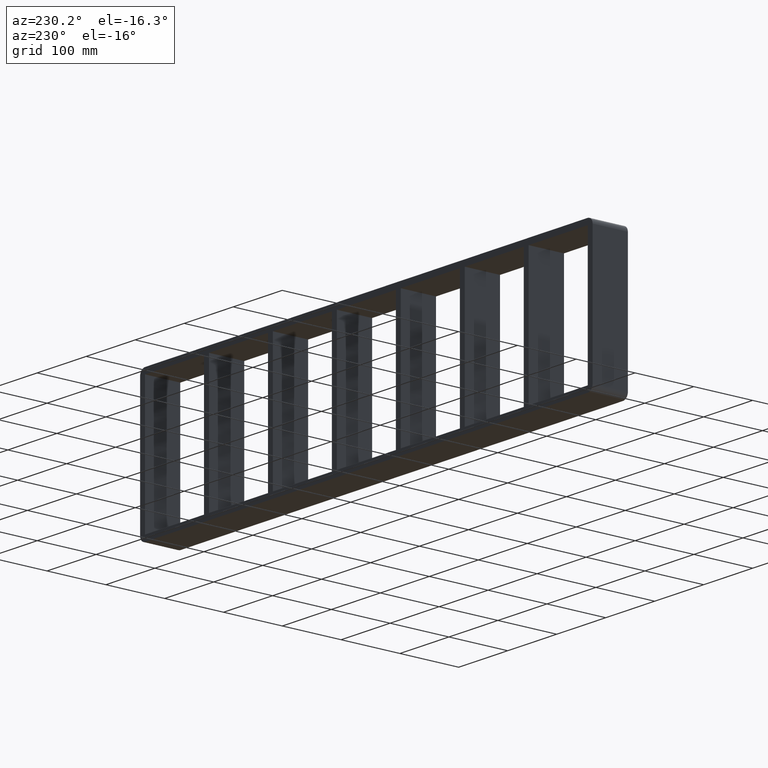
[diagram: clean part render]
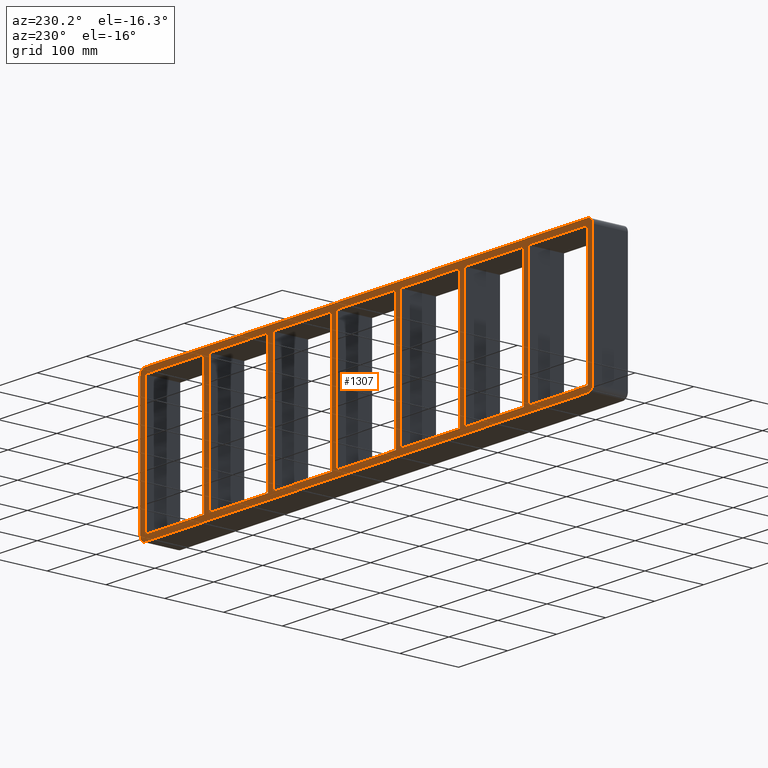
[diagram: same view with one face highlighted and labeled with its STEP entity id]
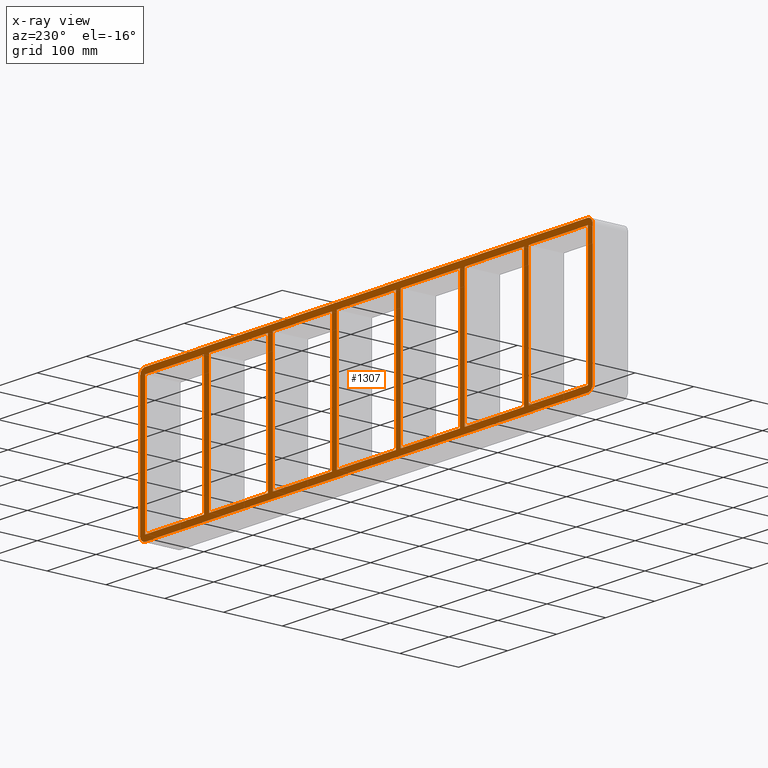
[diagram: x-ray of the same camera — body ghosted, the highlighted face saturated]
A machine part, auxiliary view. The second image highlights one B-rep face of the part: STEP entity #1307.
The next image is the same camera in x-ray: the body ghosted, the highlighted face saturated — about 0% of this face is hidden behind the body in this view.
In plain terms, the highlighted planar face has unit normal (0, 1, 0).
Its self-contained STEP definition (entity closure, byte-faithful):
#83=CARTESIAN_POINT('',(321.24999999999875,57.0,108.99999999999997));
#84=VERTEX_POINT('',#83);
#91=CARTESIAN_POINT('',(321.24999999999875,57.0,-109.0));
#92=VERTEX_POINT('',#91);
#93=CARTESIAN_POINT('',(321.24999999999875,57.0,-109.0));
#94=DIRECTION('',(0.0,0.0,1.0));
#95=VECTOR('',#94,217.99999999999997);
#96=LINE('',#93,#95);
#97=EDGE_CURVE('',#92,#84,#96,.T.);
#123=CARTESIAN_POINT('',(331.25,57.0,-108.9999999999842));
#124=VERTEX_POINT('',#123);
#131=CARTESIAN_POINT('',(331.25,57.0,108.99999999999997));
#132=VERTEX_POINT('',#131);
#133=CARTESIAN_POINT('',(331.25,57.0,108.99999999999997));
#134=DIRECTION('',(0.0,0.0,-1.0));
#135=VECTOR('',#134,217.99999999998417);
#136=LINE('',#133,#135);
#137=EDGE_CURVE('',#132,#124,#136,.T.);
#163=CARTESIAN_POINT('',(190.74999999999872,57.0,108.99999999999997));
#164=VERTEX_POINT('',#163);
#171=CARTESIAN_POINT('',(190.74999999999878,57.0,-109.0));
#172=VERTEX_POINT('',#171);
#173=CARTESIAN_POINT('',(190.74999999999878,57.0,-109.0));
#174=DIRECTION('',(0.0,0.0,1.0));
#175=VECTOR('',#174,217.99999999999997);
#176=LINE('',#173,#175);
#177=EDGE_CURVE('',#172,#164,#176,.T.);
#203=CARTESIAN_POINT('',(200.75000000000006,57.0,-108.9999999999842));
#204=VERTEX_POINT('',#203);
#211=CARTESIAN_POINT('',(200.75000000000006,57.0,108.99999999999997));
#212=VERTEX_POINT('',#211);
#213=CARTESIAN_POINT('',(200.75000000000006,57.0,108.99999999999997));
#214=DIRECTION('',(0.0,0.0,-1.0));
#215=VECTOR('',#214,217.99999999998417);
#216=LINE('',#213,#215);
#217=EDGE_CURVE('',#212,#204,#216,.T.);
#243=CARTESIAN_POINT('',(60.249999999998707,57.0,108.99999999999997));
#244=VERTEX_POINT('',#243);
#251=CARTESIAN_POINT('',(60.249999999998778,57.0,-109.0));
#252=VERTEX_POINT('',#251);
#253=CARTESIAN_POINT('',(60.249999999998778,57.0,-109.0));
#254=DIRECTION('',(0.0,0.0,1.0));
#255=VECTOR('',#254,217.99999999999997);
#256=LINE('',#253,#255);
#257=EDGE_CURVE('',#252,#244,#256,.T.);
#283=CARTESIAN_POINT('',(70.250000000000057,57.0,-108.9999999999842));
#284=VERTEX_POINT('',#283);
#291=CARTESIAN_POINT('',(70.250000000000057,57.0,108.99999999999997));
#292=VERTEX_POINT('',#291);
#293=CARTESIAN_POINT('',(70.250000000000057,57.0,108.99999999999997));
#294=DIRECTION('',(0.0,0.0,-1.0));
#295=VECTOR('',#294,217.99999999998417);
#296=LINE('',#293,#295);
#297=EDGE_CURVE('',#292,#284,#296,.T.);
#323=CARTESIAN_POINT('',(-70.250000000001336,57.0,108.99999999999997));
#324=VERTEX_POINT('',#323);
#331=CARTESIAN_POINT('',(-70.250000000001265,57.0,-109.0));
#332=VERTEX_POINT('',#331);
#333=CARTESIAN_POINT('',(-70.250000000001265,57.0,-109.0));
#334=DIRECTION('',(0.0,0.0,1.0));
#335=VECTOR('',#334,217.99999999999997);
#336=LINE('',#333,#335);
#337=EDGE_CURVE('',#332,#324,#336,.T.);
#363=CARTESIAN_POINT('',(-60.249999999999986,57.0,-108.9999999999842));
#364=VERTEX_POINT('',#363);
#371=CARTESIAN_POINT('',(-60.249999999999986,57.0,108.99999999999997));
#372=VERTEX_POINT('',#371);
#373=CARTESIAN_POINT('',(-60.249999999999986,57.0,108.99999999999997));
#374=DIRECTION('',(0.0,0.0,-1.0));
#375=VECTOR('',#374,217.99999999998417);
#376=LINE('',#373,#375);
#377=EDGE_CURVE('',#372,#364,#376,.T.);
#403=CARTESIAN_POINT('',(-200.75000000000134,57.0,108.99999999999997));
#404=VERTEX_POINT('',#403);
#411=CARTESIAN_POINT('',(-200.75000000000128,57.0,-109.0));
#412=VERTEX_POINT('',#411);
#413=CARTESIAN_POINT('',(-200.75000000000128,57.0,-109.0));
#414=DIRECTION('',(0.0,0.0,1.0));
#415=VECTOR('',#414,217.99999999999997);
#416=LINE('',#413,#415);
#417=EDGE_CURVE('',#412,#404,#416,.T.);
#443=CARTESIAN_POINT('',(-190.75,57.0,-108.9999999999842));
#444=VERTEX_POINT('',#443);
#451=CARTESIAN_POINT('',(-190.75,57.0,108.99999999999997));
#452=VERTEX_POINT('',#451);
#453=CARTESIAN_POINT('',(-190.75,57.0,108.99999999999997));
#454=DIRECTION('',(0.0,0.0,-1.0));
#455=VECTOR('',#454,217.99999999998417);
#456=LINE('',#453,#455);
#457=EDGE_CURVE('',#452,#444,#456,.T.);
#474=CARTESIAN_POINT('',(-321.25,57.0,-108.9999999999842));
#475=VERTEX_POINT('',#474);
#476=CARTESIAN_POINT('',(-321.25,57.0,-109.0));
#477=DIRECTION('',(1.0,0.0,0.0));
#478=VECTOR('',#477,120.49999999999872);
#479=LINE('',#476,#478);
#480=EDGE_CURVE('',#475,#412,#479,.T.);
#505=CARTESIAN_POINT('',(-190.74999999999997,57.0,-109.0));
#506=DIRECTION('',(1.0,0.0,0.0));
#507=VECTOR('',#506,120.49999999999869);
#508=LINE('',#505,#507);
#509=EDGE_CURVE('',#444,#332,#508,.T.);
#527=CARTESIAN_POINT('',(-60.249999999999972,57.0,-109.0));
#528=DIRECTION('',(1.0,0.0,0.0));
#529=VECTOR('',#528,120.49999999999875);
#530=LINE('',#527,#529);
#531=EDGE_CURVE('',#364,#252,#530,.T.);
#549=CARTESIAN_POINT('',(70.250000000000057,57.0,-109.0));
#550=DIRECTION('',(1.0,0.0,0.0));
#551=VECTOR('',#550,120.49999999999875);
#552=LINE('',#549,#551);
#553=EDGE_CURVE('',#284,#172,#552,.T.);
#571=CARTESIAN_POINT('',(200.75000000000006,57.0,-109.0));
#572=DIRECTION('',(1.0,0.0,0.0));
#573=VECTOR('',#572,120.49999999999869);
#574=LINE('',#571,#573);
#575=EDGE_CURVE('',#204,#92,#574,.T.);
#601=CARTESIAN_POINT('',(451.75,57.0,-109.0));
#602=VERTEX_POINT('',#601);
#609=CARTESIAN_POINT('',(331.25,57.0,-109.0));
#610=DIRECTION('',(1.0,0.0,0.0));
#611=VECTOR('',#610,120.5);
#612=LINE('',#609,#611);
#613=EDGE_CURVE('',#124,#602,#612,.T.);
#632=CARTESIAN_POINT('',(-321.25,57.0,108.99999999999997));
#633=VERTEX_POINT('',#632);
#640=CARTESIAN_POINT('',(-200.75000000000134,57.0,108.99999999999999));
#641=DIRECTION('',(-1.0,0.0,0.0));
#642=VECTOR('',#641,120.49999999999866);
#643=LINE('',#640,#642);
#644=EDGE_CURVE('',#404,#633,#643,.T.);
#662=CARTESIAN_POINT('',(-70.250000000001336,57.0,108.99999999999999));
#663=DIRECTION('',(-1.0,0.0,0.0));
#664=VECTOR('',#663,120.49999999999866);
#665=LINE('',#662,#664);
#666=EDGE_CURVE('',#324,#452,#665,.T.);
#684=CARTESIAN_POINT('',(60.249999999998693,57.0,108.99999999999999));
#685=DIRECTION('',(-1.0,0.0,0.0));
#686=VECTOR('',#685,120.49999999999866);
#687=LINE('',#684,#686);
#688=EDGE_CURVE('',#244,#372,#687,.T.);
#706=CARTESIAN_POINT('',(190.74999999999869,57.0,108.99999999999999));
#707=DIRECTION('',(-1.0,0.0,0.0));
#708=VECTOR('',#707,120.49999999999864);
#709=LINE('',#706,#708);
#710=EDGE_CURVE('',#164,#292,#709,.T.);
#721=CARTESIAN_POINT('',(451.75,57.0,108.99999999999997));
#722=VERTEX_POINT('',#721);
#723=CARTESIAN_POINT('',(451.74999999999994,57.0,108.99999999999999));
#724=DIRECTION('',(-1.0,0.0,0.0));
#725=VECTOR('',#724,120.5);
#726=LINE('',#723,#725);
#727=EDGE_CURVE('',#722,#132,#726,.T.);
#759=CARTESIAN_POINT('',(321.24999999999869,57.0,108.99999999999999));
#760=DIRECTION('',(-1.0,0.0,0.0));
#761=VECTOR('',#760,120.49999999999864);
#762=LINE('',#759,#761);
#763=EDGE_CURVE('',#84,#212,#762,.T.);
#783=CARTESIAN_POINT('',(-331.25000000000136,57.0,108.99999999999997));
#784=VERTEX_POINT('',#783);
#791=CARTESIAN_POINT('',(-331.25000000000125,57.0,-109.0));
#792=VERTEX_POINT('',#791);
#793=CARTESIAN_POINT('',(-331.25000000000125,57.0,-109.0));
#794=DIRECTION('',(0.0,0.0,1.0));
#795=VECTOR('',#794,217.99999999999997);
#796=LINE('',#793,#795);
#797=EDGE_CURVE('',#792,#784,#796,.T.);
#820=CARTESIAN_POINT('',(-321.25,57.0,108.99999999999997));
#821=DIRECTION('',(0.0,0.0,-1.0));
#822=VECTOR('',#821,217.99999999998417);
#823=LINE('',#820,#822);
#824=EDGE_CURVE('',#633,#475,#823,.T.);
#836=CARTESIAN_POINT('',(-451.75,57.0,-109.0));
#837=VERTEX_POINT('',#836);
#838=CARTESIAN_POINT('',(-451.75,57.0,-109.0));
#839=DIRECTION('',(1.0,0.0,0.0));
#840=VECTOR('',#839,120.49999999999864);
#841=LINE('',#838,#840);
#842=EDGE_CURVE('',#837,#792,#841,.T.);
#875=CARTESIAN_POINT('',(-451.75,57.0,108.99999999999997));
#876=VERTEX_POINT('',#875);
#883=CARTESIAN_POINT('',(-331.25000000000136,57.0,108.99999999999999));
#884=DIRECTION('',(-1.0,0.0,0.0));
#885=VECTOR('',#884,120.49999999999864);
#886=LINE('',#883,#885);
#887=EDGE_CURVE('',#784,#876,#886,.T.);
#897=CARTESIAN_POINT('',(451.75000000000011,57.0,-119.00000000000003));
#898=VERTEX_POINT('',#897);
#899=CARTESIAN_POINT('',(461.75000000000011,57.0,-109.00000000000003));
#900=VERTEX_POINT('',#899);
#901=CARTESIAN_POINT('',(451.75000000000011,57.0,-109.00000000000003));
#902=DIRECTION('',(0.0,-1.0,0.0));
#903=DIRECTION('',(0.707106781186547,0.0,-0.707106781186547));
#904=AXIS2_PLACEMENT_3D('',#901,#902,#903);
#905=CIRCLE('',#904,9.999999999999998);
#906=EDGE_CURVE('',#898,#900,#905,.T.);
#1058=CARTESIAN_POINT('',(461.75000000000011,57.0,108.99999999999999));
#1059=VERTEX_POINT('',#1058);
#1060=CARTESIAN_POINT('',(461.75000000000011,57.0,108.99999999999999));
#1061=DIRECTION('',(0.0,0.0,-1.0));
#1062=VECTOR('',#1061,218.0);
#1063=LINE('',#1060,#1062);
#1064=EDGE_CURVE('',#1059,#900,#1063,.T.);
#1083=CARTESIAN_POINT('',(451.75000000000011,57.0,118.99999999999999));
#1084=VERTEX_POINT('',#1083);
#1085=CARTESIAN_POINT('',(451.75000000000011,57.0,108.99999999999999));
#1086=DIRECTION('',(0.0,-1.0,0.0));
#1087=DIRECTION('',(0.707106781186547,0.0,0.707106781186547));
#1088=AXIS2_PLACEMENT_3D('',#1085,#1086,#1087);
#1089=CIRCLE('',#1088,9.999999999999998);
#1090=EDGE_CURVE('',#1059,#1084,#1089,.T.);
#1106=CARTESIAN_POINT('',(-461.75,57.0,-109.00000000000003));
#1107=VERTEX_POINT('',#1106);
#1108=CARTESIAN_POINT('',(-451.75,57.0,-119.00000000000003));
#1109=VERTEX_POINT('',#1108);
#1110=CARTESIAN_POINT('',(-451.75,57.0,-109.00000000000003));
#1111=DIRECTION('',(0.0,-1.0,0.0));
#1112=DIRECTION('',(-0.707106781186547,0.0,-0.707106781186547));
#1113=AXIS2_PLACEMENT_3D('',#1110,#1111,#1112);
#1114=CIRCLE('',#1113,9.999999999999998);
#1115=EDGE_CURVE('',#1107,#1109,#1114,.T.);
#1140=CARTESIAN_POINT('',(-461.75,57.0,108.99999999999999));
#1141=VERTEX_POINT('',#1140);
#1148=CARTESIAN_POINT('',(-461.75,57.0,-109.00000000000003));
#1149=DIRECTION('',(0.0,0.0,1.0));
#1150=VECTOR('',#1149,218.0);
#1151=LINE('',#1148,#1150);
#1152=EDGE_CURVE('',#1107,#1141,#1151,.T.);
#1162=CARTESIAN_POINT('',(-451.75,57.0,118.99999999999999));
#1163=VERTEX_POINT('',#1162);
#1164=CARTESIAN_POINT('',(-451.75,57.0,108.99999999999999));
#1165=DIRECTION('',(0.0,-1.0,0.0));
#1166=DIRECTION('',(-0.707106781186547,0.0,0.707106781186547));
#1167=AXIS2_PLACEMENT_3D('',#1164,#1165,#1166);
#1168=CIRCLE('',#1167,9.999999999999998);
#1169=EDGE_CURVE('',#1163,#1141,#1168,.T.);
#1188=CARTESIAN_POINT('',(-451.75,57.0,118.99999999999999));
#1189=DIRECTION('',(1.0,0.0,0.0));
#1190=VECTOR('',#1189,903.50000000000011);
#1191=LINE('',#1188,#1190);
#1192=EDGE_CURVE('',#1163,#1084,#1191,.T.);
#1207=CARTESIAN_POINT('',(451.75,57.0,-108.99999999999999));
#1208=DIRECTION('',(0.0,0.0,1.0));
#1209=VECTOR('',#1208,217.99999999999994);
#1210=LINE('',#1207,#1209);
#1211=EDGE_CURVE('',#602,#722,#1210,.T.);
#1224=CARTESIAN_POINT('',(-451.75,57.0,108.99999999999996));
#1225=DIRECTION('',(0.0,0.0,-1.0));
#1226=VECTOR('',#1225,217.99999999999994);
#1227=LINE('',#1224,#1226);
#1228=EDGE_CURVE('',#876,#837,#1227,.T.);
#1241=CARTESIAN_POINT('',(451.75000000000011,57.0,-119.00000000000003));
#1242=DIRECTION('',(-1.0,0.0,0.0));
#1243=VECTOR('',#1242,903.50000000000011);
#1244=LINE('',#1241,#1243);
#1245=EDGE_CURVE('',#898,#1109,#1244,.T.);
#1250=CARTESIAN_POINT('',(7.229306E-014,57.0,-1.468190E-014));
#1251=DIRECTION('',(0.0,1.0,0.0));
#1252=DIRECTION('',(0.0,0.0,1.0));
#1253=AXIS2_PLACEMENT_3D('',#1250,#1251,#1252);
#1254=PLANE('',#1253);
#1255=ORIENTED_EDGE('',*,*,#906,.F.);
#1256=ORIENTED_EDGE('',*,*,#1245,.T.);
#1257=ORIENTED_EDGE('',*,*,#1115,.F.);
#1258=ORIENTED_EDGE('',*,*,#1152,.T.);
#1259=ORIENTED_EDGE('',*,*,#1169,.F.);
#1260=ORIENTED_EDGE('',*,*,#1192,.T.);
#1261=ORIENTED_EDGE('',*,*,#1090,.F.);
#1262=ORIENTED_EDGE('',*,*,#1064,.T.);
#1263=EDGE_LOOP('',(#1255,#1256,#1257,#1258,#1259,#1260,#1261,#1262));
#1264=FACE_OUTER_BOUND('',#1263,.T.);
#1265=ORIENTED_EDGE('',*,*,#613,.T.);
#1266=ORIENTED_EDGE('',*,*,#1211,.T.);
#1267=ORIENTED_EDGE('',*,*,#727,.T.);
#1268=ORIENTED_EDGE('',*,*,#137,.T.);
#1269=EDGE_LOOP('',(#1265,#1266,#1267,#1268));
#1270=FACE_BOUND('',#1269,.T.);
#1271=ORIENTED_EDGE('',*,*,#97,.T.);
#1272=ORIENTED_EDGE('',*,*,#763,.T.);
#1273=ORIENTED_EDGE('',*,*,#217,.T.);
#1274=ORIENTED_EDGE('',*,*,#575,.T.);
#1275=EDGE_LOOP('',(#1271,#1272,#1273,#1274));
#1276=FACE_BOUND('',#1275,.T.);
#1277=ORIENTED_EDGE('',*,*,#177,.T.);
#1278=ORIENTED_EDGE('',*,*,#710,.T.);
#1279=ORIENTED_EDGE('',*,*,#297,.T.);
#1280=ORIENTED_EDGE('',*,*,#553,.T.);
#1281=EDGE_LOOP('',(#1277,#1278,#1279,#1280));
#1282=FACE_BOUND('',#1281,.T.);
#1283=ORIENTED_EDGE('',*,*,#257,.T.);
#1284=ORIENTED_EDGE('',*,*,#688,.T.);
#1285=ORIENTED_EDGE('',*,*,#377,.T.);
#1286=ORIENTED_EDGE('',*,*,#531,.T.);
#1287=EDGE_LOOP('',(#1283,#1284,#1285,#1286));
#1288=FACE_BOUND('',#1287,.T.);
#1289=ORIENTED_EDGE('',*,*,#337,.T.);
#1290=ORIENTED_EDGE('',*,*,#666,.T.);
#1291=ORIENTED_EDGE('',*,*,#457,.T.);
#1292=ORIENTED_EDGE('',*,*,#509,.T.);
#1293=EDGE_LOOP('',(#1289,#1290,#1291,#1292));
#1294=FACE_BOUND('',#1293,.T.);
#1295=ORIENTED_EDGE('',*,*,#417,.T.);
#1296=ORIENTED_EDGE('',*,*,#644,.T.);
#1297=ORIENTED_EDGE('',*,*,#824,.T.);
#1298=ORIENTED_EDGE('',*,*,#480,.T.);
#1299=EDGE_LOOP('',(#1295,#1296,#1297,#1298));
#1300=FACE_BOUND('',#1299,.T.);
#1301=ORIENTED_EDGE('',*,*,#797,.T.);
#1302=ORIENTED_EDGE('',*,*,#887,.T.);
#1303=ORIENTED_EDGE('',*,*,#1228,.T.);
#1304=ORIENTED_EDGE('',*,*,#842,.T.);
#1305=EDGE_LOOP('',(#1301,#1302,#1303,#1304));
#1306=FACE_BOUND('',#1305,.T.);
#1307=ADVANCED_FACE('',(#1264,#1270,#1276,#1282,#1288,#1294,#1300,#1306),#1254,.T.);